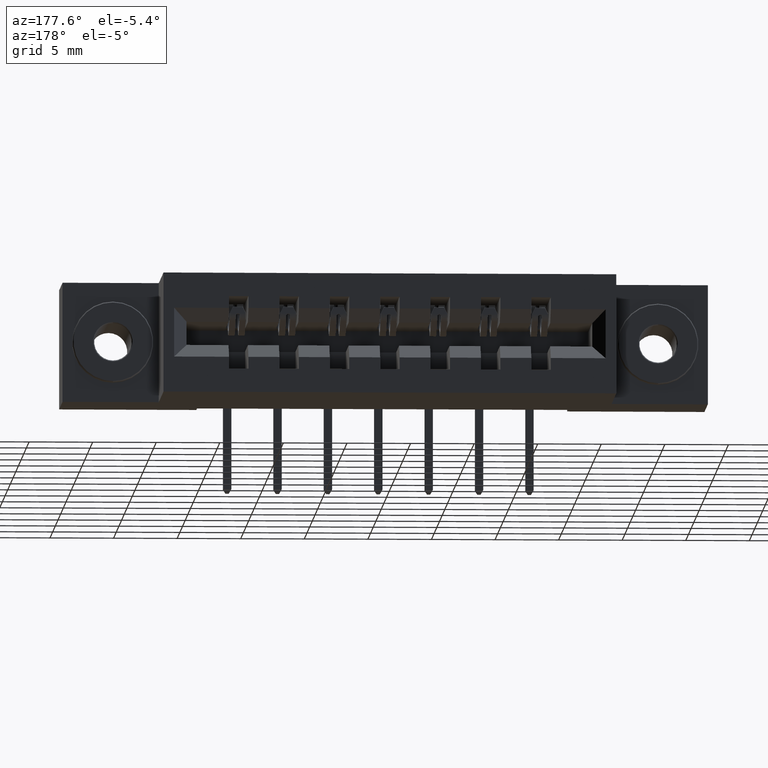
[diagram: clean part render]
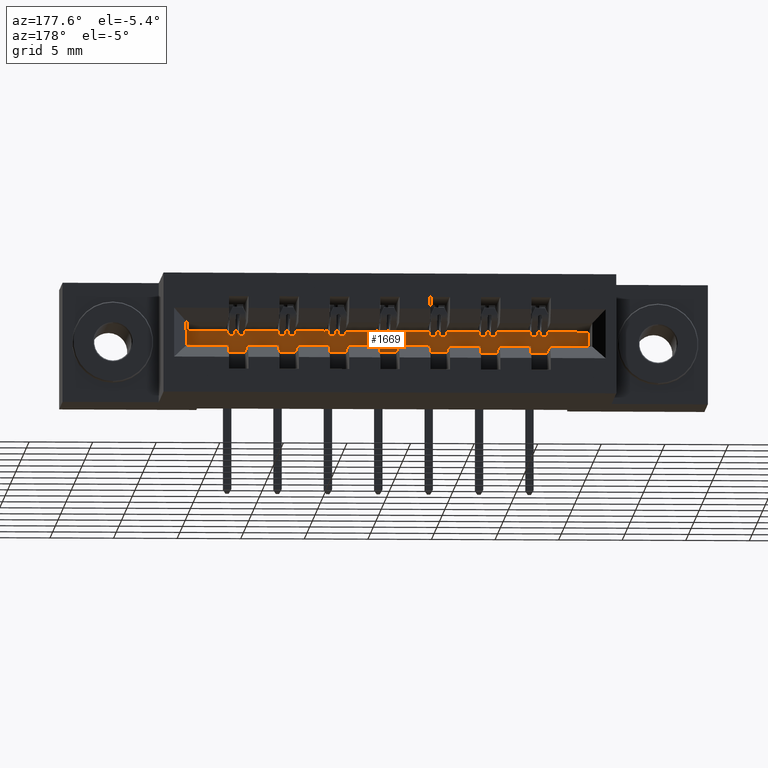
[diagram: same view with one face highlighted and labeled with its STEP entity id]
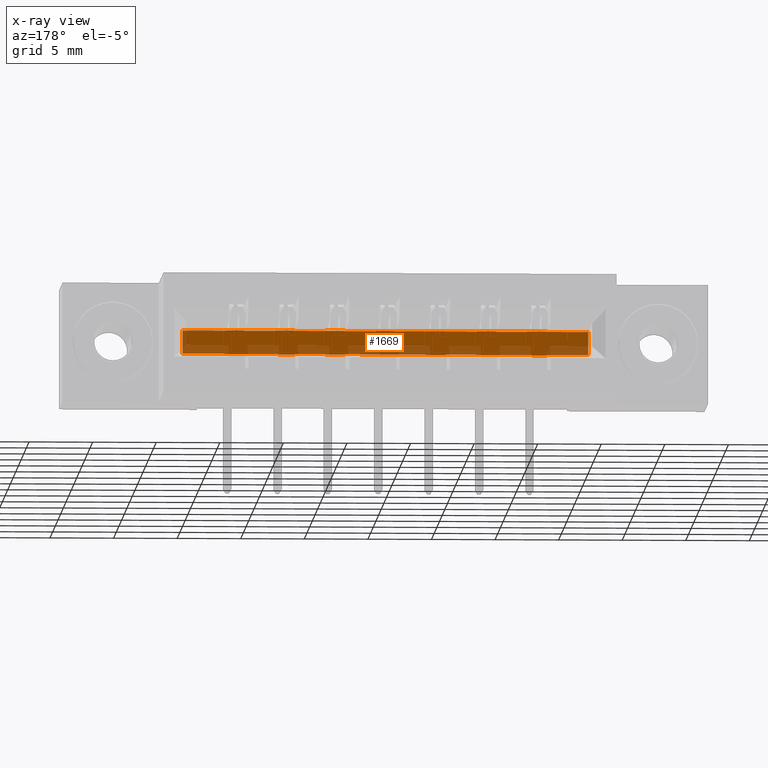
[diagram: x-ray of the same camera — body ghosted, the highlighted face saturated]
A machine part, auxiliary view. The second image highlights one B-rep face of the part: STEP entity #1669.
The next image is the same camera in x-ray: the body ghosted, the highlighted face saturated — about 26% of this face is hidden behind the body in this view.
In plain terms, the highlighted planar face has unit normal (0, 1, 0).
Its self-contained STEP definition (entity closure, byte-faithful):
#30 = ORIENTED_EDGE ( 'NONE', *, *, #7096, .T. ) ;
#111 = VECTOR ( 'NONE', #7673, 39.37007874015748100 ) ;
#119 = VERTEX_POINT ( 'NONE', #2546 ) ;
#121 = EDGE_CURVE ( 'NONE', #5242, #4888, #2994, .T. ) ;
#145 = EDGE_CURVE ( 'NONE', #9084, #989, #472, .T. ) ;
#168 = VECTOR ( 'NONE', #6347, 39.37007874015748100 ) ;
#200 = CARTESIAN_POINT ( 'NONE',  ( 0.3710000000000000000, 0.2699999999999999100, -0.2210000000000000900 ) ) ;
#235 = LINE ( 'NONE', #4000, #4402 ) ;
#307 = DIRECTION ( 'NONE',  ( -1.000000000000000000, -0.0000000000000000000, -0.0000000000000000000 ) ) ;
#381 = DIRECTION ( 'NONE',  ( 1.000000000000000000, -0.0000000000000000000, -0.0000000000000000000 ) ) ;
#382 = CARTESIAN_POINT ( 'NONE',  ( 0.3710000000000000000, 0.2699999999999999100, -0.1490000000000000800 ) ) ;
#392 = CARTESIAN_POINT ( 'NONE',  ( 0.3710000000000000000, 0.2699999999999999100, -0.1490000000000000800 ) ) ;
#406 = CARTESIAN_POINT ( 'NONE',  ( 0.5010000000000001100, 0.2700000000000001800, -0.1480000000000000800 ) ) ;
#421 = LINE ( 'NONE', #1260, #1828 ) ;
#432 = VERTEX_POINT ( 'NONE', #5346 ) ;
#433 = VECTOR ( 'NONE', #5847, 39.37007874015748100 ) ;
#439 = EDGE_CURVE ( 'NONE', #8947, #989, #5281, .T. ) ;
#460 = VERTEX_POINT ( 'NONE', #1191 ) ;
#461 = VECTOR ( 'NONE', #4864, 39.37007874015748100 ) ;
#472 = LINE ( 'NONE', #684, #3866 ) ;
#476 = LINE ( 'NONE', #200, #8978 ) ;
#488 = DIRECTION ( 'NONE',  ( 0.0000000000000000000, -3.691686477924679400E-015, -1.000000000000000000 ) ) ;
#519 = ORIENTED_EDGE ( 'NONE', *, *, #9129, .F. ) ;
#530 = ORIENTED_EDGE ( 'NONE', *, *, #7590, .T. ) ;
#644 = ORIENTED_EDGE ( 'NONE', *, *, #7849, .F. ) ;
#684 = CARTESIAN_POINT ( 'NONE',  ( 0.8730000000000000000, 0.2700000000000001800, -0.1480000000000000500 ) ) ;
#686 = LINE ( 'NONE', #406, #2478 ) ;
#715 = VERTEX_POINT ( 'NONE', #6340 ) ;
#720 = CARTESIAN_POINT ( 'NONE',  ( 1.340999999999999700, 0.2699999999999999100, -0.2220000000000000000 ) ) ;
#755 = EDGE_CURVE ( 'NONE', #9290, #8055, #3622, .T. ) ;
#792 = EDGE_CURVE ( 'NONE', #1795, #715, #7303, .T. ) ;
#811 = EDGE_CURVE ( 'NONE', #2410, #4888, #6156, .T. ) ;
#841 = ORIENTED_EDGE ( 'NONE', *, *, #8873, .T. ) ;
#861 = VECTOR ( 'NONE', #6283, 39.37007874015748100 ) ;
#874 = VECTOR ( 'NONE', #1835, 39.37007874015748100 ) ;
#912 = VERTEX_POINT ( 'NONE', #5812 ) ;
#927 = ORIENTED_EDGE ( 'NONE', *, *, #1927, .F. ) ;
#938 = VERTEX_POINT ( 'NONE', #6897 ) ;
#956 = VERTEX_POINT ( 'NONE', #6041 ) ;
#958 = LINE ( 'NONE', #5468, #9312 ) ;
#968 = VECTOR ( 'NONE', #7392, 39.37007874015748100 ) ;
#989 = VERTEX_POINT ( 'NONE', #1937 ) ;
#1027 = ORIENTED_EDGE ( 'NONE', *, *, #5663, .T. ) ;
#1040 = CARTESIAN_POINT ( 'NONE',  ( 0.7170000000000000800, 0.2700000000000001800, -0.1490000000000000800 ) ) ;
#1048 = CARTESIAN_POINT ( 'NONE',  ( 0.3710000000000000000, 0.2699999999999999100, -0.1490000000000000800 ) ) ;
#1073 = DIRECTION ( 'NONE',  ( 1.000000000000000000, -0.0000000000000000000, -0.0000000000000000000 ) ) ;
#1083 = CARTESIAN_POINT ( 'NONE',  ( 1.124999999999999800, 0.2699999999999999100, -0.2220000000000000600 ) ) ;
#1124 = VECTOR ( 'NONE', #7715, 39.37007874015748100 ) ;
#1131 = CARTESIAN_POINT ( 'NONE',  ( 0.6570000000000000300, 0.2700000000000001800, -0.1480000000000000500 ) ) ;
#1175 = DIRECTION ( 'NONE',  ( 0.0000000000000000000, -3.691686477924679400E-015, -1.000000000000000000 ) ) ;
#1191 = CARTESIAN_POINT ( 'NONE',  ( 0.5010000000000001100, 0.2699999999999999100, -0.2210000000000000900 ) ) ;
#1193 = CARTESIAN_POINT ( 'NONE',  ( 0.3710000000000000000, 0.2699999999999999100, -0.1490000000000000800 ) ) ;
#1212 = CARTESIAN_POINT ( 'NONE',  ( 0.5610000000000000500, 0.2700000000000001800, -0.1490000000000000800 ) ) ;
#1247 = ORIENTED_EDGE ( 'NONE', *, *, #439, .F. ) ;
#1260 = CARTESIAN_POINT ( 'NONE',  ( 0.9689999999999998600, 0.2700000000000001800, -0.1480000000000000200 ) ) ;
#1266 = LINE ( 'NONE', #6086, #6835 ) ;
#1284 = VERTEX_POINT ( 'NONE', #9031 ) ;
#1300 = VERTEX_POINT ( 'NONE', #6467 ) ;
#1345 = EDGE_CURVE ( 'NONE', #1300, #10348, #4882, .T. ) ;
#1394 = ORIENTED_EDGE ( 'NONE', *, *, #792, .T. ) ;
#1421 = CARTESIAN_POINT ( 'NONE',  ( 1.124999999999999800, 0.2700000000000001800, -0.1480000000000000200 ) ) ;
#1434 = ORIENTED_EDGE ( 'NONE', *, *, #1692, .T. ) ;
#1435 = CARTESIAN_POINT ( 'NONE',  ( 0.9689999999999998600, 0.2699999999999999100, -0.2210000000000000900 ) ) ;
#1474 = LINE ( 'NONE', #2894, #8825 ) ;
#1491 = LINE ( 'NONE', #6565, #1884 ) ;
#1494 = LINE ( 'NONE', #2049, #8338 ) ;
#1567 = VERTEX_POINT ( 'NONE', #5796 ) ;
#1584 = LINE ( 'NONE', #4093, #8543 ) ;
#1592 = CARTESIAN_POINT ( 'NONE',  ( 1.124999999999999800, 0.2700000000000001800, -0.1480000000000000200 ) ) ;
#1603 = ORIENTED_EDGE ( 'NONE', *, *, #10061, .F. ) ;
#1606 = EDGE_CURVE ( 'NONE', #3092, #8414, #3356, .T. ) ;
#1615 = CARTESIAN_POINT ( 'NONE',  ( 1.184999999999999800, 0.2700000000000001800, -0.1480000000000000200 ) ) ;
#1625 = CARTESIAN_POINT ( 'NONE',  ( 1.340999999999999700, 0.2700000000000001800, -0.1480000000000000200 ) ) ;
#1629 = ORIENTED_EDGE ( 'NONE', *, *, #9625, .T. ) ;
#1644 = LINE ( 'NONE', #5893, #10097 ) ;
#1669 = ADVANCED_FACE ( 'NONE', ( #7422 ), #4412, .T. ) ;
#1691 = CARTESIAN_POINT ( 'NONE',  ( 0.3710000000000000000, 0.2699999999999999100, -0.2210000000000000900 ) ) ;
#1692 = EDGE_CURVE ( 'NONE', #7751, #7327, #2615, .T. ) ;
#1719 = DIRECTION ( 'NONE',  ( 1.000000000000000000, 0.0000000000000000000, 0.0000000000000000000 ) ) ;
#1724 = ORIENTED_EDGE ( 'NONE', *, *, #6887, .F. ) ;
#1735 = CARTESIAN_POINT ( 'NONE',  ( 0.8129999999999999400, 0.2700000000000001800, -0.1480000000000000500 ) ) ;
#1749 = CARTESIAN_POINT ( 'NONE',  ( 1.437000000000000100, 0.2699999999999999100, -0.2220000000000000000 ) ) ;
#1752 = VERTEX_POINT ( 'NONE', #7685 ) ;
#1795 = VERTEX_POINT ( 'NONE', #10331 ) ;
#1797 = DIRECTION ( 'NONE',  ( -1.000000000000000000, -0.0000000000000000000, -0.0000000000000000000 ) ) ;
#1828 = VECTOR ( 'NONE', #5134, 39.37007874015748100 ) ;
#1835 = DIRECTION ( 'NONE',  ( -1.000000000000000000, -0.0000000000000000000, -0.0000000000000000000 ) ) ;
#1839 = VECTOR ( 'NONE', #3303, 39.37007874015748100 ) ;
#1874 = CARTESIAN_POINT ( 'NONE',  ( 1.124999999999999800, 0.2699999999999999100, -0.2210000000000000900 ) ) ;
#1884 = VECTOR ( 'NONE', #5479, 39.37007874015748100 ) ;
#1888 = VERTEX_POINT ( 'NONE', #3789 ) ;
#1900 = ORIENTED_EDGE ( 'NONE', *, *, #5104, .T. ) ;
#1916 = CARTESIAN_POINT ( 'NONE',  ( 0.7170000000000000800, 0.2699999999999999100, -0.2210000000000000900 ) ) ;
#1922 = DIRECTION ( 'NONE',  ( 1.000000000000000000, 0.0000000000000000000, 0.0000000000000000000 ) ) ;
#1927 = EDGE_CURVE ( 'NONE', #8681, #7222, #686, .T. ) ;
#1937 = CARTESIAN_POINT ( 'NONE',  ( 0.8730000000000000000, 0.2699999999999999100, -0.2220000000000000600 ) ) ;
#1938 = ORIENTED_EDGE ( 'NONE', *, *, #5857, .T. ) ;
#1976 = VECTOR ( 'NONE', #8110, 39.37007874015748100 ) ;
#1998 = LINE ( 'NONE', #4285, #4524 ) ;
#2014 = DIRECTION ( 'NONE',  ( -1.000000000000000000, -0.0000000000000000000, -0.0000000000000000000 ) ) ;
#2049 = CARTESIAN_POINT ( 'NONE',  ( 0.7170000000000000800, 0.2700000000000001800, -0.1480000000000000500 ) ) ;
#2087 = CARTESIAN_POINT ( 'NONE',  ( 1.028999999999999900, 0.2700000000000001800, -0.1480000000000000200 ) ) ;
#2116 = VECTOR ( 'NONE', #9808, 39.37007874015748100 ) ;
#2123 = ORIENTED_EDGE ( 'NONE', *, *, #2577, .T. ) ;
#2171 = ORIENTED_EDGE ( 'NONE', *, *, #3667, .T. ) ;
#2188 = VERTEX_POINT ( 'NONE', #4211 ) ;
#2238 = CARTESIAN_POINT ( 'NONE',  ( 0.7170000000000000800, 0.2700000000000001800, -0.1480000000000000500 ) ) ;
#2313 = ORIENTED_EDGE ( 'NONE', *, *, #4011, .T. ) ;
#2334 = LINE ( 'NONE', #3118, #168 ) ;
#2346 = LINE ( 'NONE', #7315, #1839 ) ;
#2366 = LINE ( 'NONE', #9467, #2845 ) ;
#2369 = CARTESIAN_POINT ( 'NONE',  ( 0.5610000000000000500, 0.2699999999999999100, -0.2220000000000000900 ) ) ;
#2373 = CARTESIAN_POINT ( 'NONE',  ( 0.3710000000000000000, 0.2699999999999999100, -0.2210000000000000900 ) ) ;
#2389 = ORIENTED_EDGE ( 'NONE', *, *, #1606, .T. ) ;
#2410 = VERTEX_POINT ( 'NONE', #6355 ) ;
#2478 = VECTOR ( 'NONE', #1175, 39.37007874015748100 ) ;
#2495 = LINE ( 'NONE', #1048, #6537 ) ;
#2546 = CARTESIAN_POINT ( 'NONE',  ( 1.124999999999999800, 0.2700000000000001800, -0.1490000000000000800 ) ) ;
#2577 = EDGE_CURVE ( 'NONE', #938, #9240, #7460, .T. ) ;
#2582 = DIRECTION ( 'NONE',  ( 0.0000000000000000000, -3.691686477924679400E-015, -1.000000000000000000 ) ) ;
#2607 = DIRECTION ( 'NONE',  ( 0.0000000000000000000, -3.691686477924679400E-015, -1.000000000000000000 ) ) ;
#2615 = LINE ( 'NONE', #1193, #10437 ) ;
#2617 = CARTESIAN_POINT ( 'NONE',  ( 0.3710000000000000000, 0.2699999999999999100, -0.1490000000000000800 ) ) ;
#2622 = EDGE_CURVE ( 'NONE', #8078, #1567, #8670, .T. ) ;
#2670 = VERTEX_POINT ( 'NONE', #10247 ) ;
#2679 = CARTESIAN_POINT ( 'NONE',  ( 0.9689999999999998600, 0.2700000000000001800, -0.1480000000000000200 ) ) ;
#2680 = ORIENTED_EDGE ( 'NONE', *, *, #9278, .T. ) ;
#2683 = CARTESIAN_POINT ( 'NONE',  ( 0.5610000000000000500, 0.2700000000000001800, -0.1480000000000000800 ) ) ;
#2706 = DIRECTION ( 'NONE',  ( 0.0000000000000000000, 1.000000000000000000, 0.0000000000000000000 ) ) ;
#2727 = LINE ( 'NONE', #2679, #3969 ) ;
#2746 = CARTESIAN_POINT ( 'NONE',  ( 0.3710000000000000000, 0.2699999999999999100, -0.2210000000000000900 ) ) ;
#2748 = VECTOR ( 'NONE', #9930, 39.37007874015748100 ) ;
#2798 = EDGE_CURVE ( 'NONE', #432, #956, #1266, .T. ) ;
#2817 = CARTESIAN_POINT ( 'NONE',  ( 1.626999999999999800, 0.2699999999999999100, -0.2210000000000000900 ) ) ;
#2845 = VECTOR ( 'NONE', #8731, 39.37007874015748100 ) ;
#2854 = VECTOR ( 'NONE', #5194, 39.37007874015748100 ) ;
#2894 = CARTESIAN_POINT ( 'NONE',  ( 0.5610000000000000500, 0.2700000000000001800, -0.1480000000000000800 ) ) ;
#2946 = DIRECTION ( 'NONE',  ( 0.0000000000000000000, -3.691686477924679400E-015, -1.000000000000000000 ) ) ;
#2949 = LINE ( 'NONE', #4557, #3707 ) ;
#2981 = ORIENTED_EDGE ( 'NONE', *, *, #4365, .F. ) ;
#2992 = EDGE_CURVE ( 'NONE', #2188, #7222, #7339, .T. ) ;
#2994 = LINE ( 'NONE', #1625, #861 ) ;
#3027 = DIRECTION ( 'NONE',  ( 0.0000000000000000000, -3.691686477924679400E-015, -1.000000000000000000 ) ) ;
#3074 = VECTOR ( 'NONE', #9168, 39.37007874015748100 ) ;
#3081 = ORIENTED_EDGE ( 'NONE', *, *, #2798, .F. ) ;
#3092 = VERTEX_POINT ( 'NONE', #1874 ) ;
#3118 = CARTESIAN_POINT ( 'NONE',  ( 1.280999999999999700, 0.2700000000000001800, -0.1480000000000000200 ) ) ;
#3121 = EDGE_CURVE ( 'NONE', #4153, #7310, #1998, .T. ) ;
#3140 = VERTEX_POINT ( 'NONE', #8492 ) ;
#3200 = DIRECTION ( 'NONE',  ( 1.000000000000000000, -0.0000000000000000000, -0.0000000000000000000 ) ) ;
#3247 = VECTOR ( 'NONE', #6727, 39.37007874015748100 ) ;
#3262 = EDGE_CURVE ( 'NONE', #9663, #1752, #1491, .T. ) ;
#3303 = DIRECTION ( 'NONE',  ( 0.0000000000000000000, -3.691686477924679400E-015, -1.000000000000000000 ) ) ;
#3320 = VERTEX_POINT ( 'NONE', #4623 ) ;
#3356 = LINE ( 'NONE', #6822, #4221 ) ;
#3368 = CARTESIAN_POINT ( 'NONE',  ( 1.340999999999999700, 0.2699999999999999100, -0.2210000000000000900 ) ) ;
#3373 = DIRECTION ( 'NONE',  ( 0.0000000000000000000, -3.691686477924679400E-015, -1.000000000000000000 ) ) ;
#3413 = CARTESIAN_POINT ( 'NONE',  ( 1.184999999999999800, 0.2699999999999999100, -0.2210000000000000900 ) ) ;
#3431 = CARTESIAN_POINT ( 'NONE',  ( 1.280999999999999700, 0.2700000000000001800, -0.1480000000000000200 ) ) ;
#3453 = DIRECTION ( 'NONE',  ( 0.0000000000000000000, -3.691686477924679400E-015, -1.000000000000000000 ) ) ;
#3518 = VERTEX_POINT ( 'NONE', #10465 ) ;
#3568 = DIRECTION ( 'NONE',  ( 1.000000000000000000, 0.0000000000000000000, 0.0000000000000000000 ) ) ;
#3598 = LINE ( 'NONE', #3431, #433 ) ;
#3599 = VECTOR ( 'NONE', #8398, 39.37007874015748100 ) ;
#3622 = LINE ( 'NONE', #8779, #7184 ) ;
#3623 = VERTEX_POINT ( 'NONE', #8032 ) ;
#3625 = VECTOR ( 'NONE', #6781, 39.37007874015748100 ) ;
#3626 = DIRECTION ( 'NONE',  ( 1.000000000000000000, 0.0000000000000000000, 0.0000000000000000000 ) ) ;
#3632 = DIRECTION ( 'NONE',  ( 0.0000000000000000000, -3.691686477924679400E-015, -1.000000000000000000 ) ) ;
#3663 = ORIENTED_EDGE ( 'NONE', *, *, #6122, .T. ) ;
#3667 = EDGE_CURVE ( 'NONE', #10348, #1567, #4787, .T. ) ;
#3696 = VERTEX_POINT ( 'NONE', #7346 ) ;
#3707 = VECTOR ( 'NONE', #6558, 39.37007874015748100 ) ;
#3789 = CARTESIAN_POINT ( 'NONE',  ( 0.5610000000000000500, 0.2699999999999999100, -0.2210000000000000900 ) ) ;
#3795 = ORIENTED_EDGE ( 'NONE', *, *, #5981, .F. ) ;
#3808 = LINE ( 'NONE', #6848, #3940 ) ;
#3811 = CARTESIAN_POINT ( 'NONE',  ( 1.496999999999999900, 0.2700000000000001800, -0.1479999999999999900 ) ) ;
#3866 = VECTOR ( 'NONE', #3373, 39.37007874015748100 ) ;
#3910 = ORIENTED_EDGE ( 'NONE', *, *, #10361, .T. ) ;
#3940 = VECTOR ( 'NONE', #3632, 39.37007874015748100 ) ;
#3957 = VERTEX_POINT ( 'NONE', #7156 ) ;
#3968 = EDGE_CURVE ( 'NONE', #3140, #1888, #6172, .T. ) ;
#3969 = VECTOR ( 'NONE', #2607, 39.37007874015748100 ) ;
#4000 = CARTESIAN_POINT ( 'NONE',  ( 0.9689999999999998600, 0.2699999999999999100, -0.2220000000000000600 ) ) ;
#4009 = VECTOR ( 'NONE', #7135, 39.37007874015748100 ) ;
#4011 = EDGE_CURVE ( 'NONE', #7988, #5780, #1494, .T. ) ;
#4027 = CARTESIAN_POINT ( 'NONE',  ( 0.8730000000000000000, 0.2699999999999999100, -0.2210000000000000900 ) ) ;
#4040 = ORIENTED_EDGE ( 'NONE', *, *, #3968, .T. ) ;
#4073 = EDGE_CURVE ( 'NONE', #8882, #1752, #10218, .T. ) ;
#4093 = CARTESIAN_POINT ( 'NONE',  ( 1.437000000000000100, 0.2700000000000001800, -0.1479999999999999900 ) ) ;
#4104 = CARTESIAN_POINT ( 'NONE',  ( 1.496999999999999900, 0.2700000000000001800, -0.1479999999999999900 ) ) ;
#4112 = LINE ( 'NONE', #4218, #7921 ) ;
#4153 = VERTEX_POINT ( 'NONE', #2683 ) ;
#4184 = ORIENTED_EDGE ( 'NONE', *, *, #9266, .T. ) ;
#4196 = EDGE_CURVE ( 'NONE', #460, #6081, #8580, .T. ) ;
#4211 = CARTESIAN_POINT ( 'NONE',  ( 0.3710000000000000000, 0.2699999999999999100, -0.1490000000000000800 ) ) ;
#4218 = CARTESIAN_POINT ( 'NONE',  ( 0.3710000000000000000, 0.2699999999999999100, -0.1490000000000000800 ) ) ;
#4221 = VECTOR ( 'NONE', #8443, 39.37007874015748100 ) ;
#4285 = CARTESIAN_POINT ( 'NONE',  ( 0.5610000000000000500, 0.2700000000000001800, -0.1480000000000000800 ) ) ;
#4334 = CARTESIAN_POINT ( 'NONE',  ( 0.3710000000000000000, 0.2699999999999999100, -0.2210000000000000900 ) ) ;
#4347 = CARTESIAN_POINT ( 'NONE',  ( 1.124999999999999800, 0.2699999999999999100, -0.2220000000000000600 ) ) ;
#4361 = ORIENTED_EDGE ( 'NONE', *, *, #4825, .T. ) ;
#4365 = EDGE_CURVE ( 'NONE', #4556, #5728, #7053, .T. ) ;
#4371 = CARTESIAN_POINT ( 'NONE',  ( 0.8730000000000000000, 0.2700000000000001800, -0.1480000000000000500 ) ) ;
#4381 = LINE ( 'NONE', #5955, #3625 ) ;
#4402 = VECTOR ( 'NONE', #3200, 39.37007874015748100 ) ;
#4412 = PLANE ( 'NONE',  #9708 ) ;
#4422 = CARTESIAN_POINT ( 'NONE',  ( 0.8129999999999999400, 0.2699999999999999100, -0.2220000000000000600 ) ) ;
#4439 = CARTESIAN_POINT ( 'NONE',  ( 1.437000000000000100, 0.2699999999999999100, -0.2210000000000000900 ) ) ;
#4492 = LINE ( 'NONE', #3811, #6916 ) ;
#4524 = VECTOR ( 'NONE', #2582, 39.37007874015748100 ) ;
#4556 = VERTEX_POINT ( 'NONE', #8620 ) ;
#4557 = CARTESIAN_POINT ( 'NONE',  ( 0.8129999999999999400, 0.2700000000000001800, -0.1480000000000000500 ) ) ;
#4607 = CARTESIAN_POINT ( 'NONE',  ( 0.3710000000000000000, 0.2699999999999999100, -0.1490000000000000800 ) ) ;
#4613 = CARTESIAN_POINT ( 'NONE',  ( 0.5010000000000001100, 0.2700000000000001800, -0.1480000000000000800 ) ) ;
#4623 = CARTESIAN_POINT ( 'NONE',  ( 1.437000000000000100, 0.2700000000000001800, -0.1479999999999999900 ) ) ;
#4632 = LINE ( 'NONE', #7112, #8320 ) ;
#4645 = EDGE_CURVE ( 'NONE', #9215, #9663, #10191, .T. ) ;
#4661 = ORIENTED_EDGE ( 'NONE', *, *, #8557, .F. ) ;
#4668 = DIRECTION ( 'NONE',  ( 0.0000000000000000000, -3.691686477924679400E-015, -1.000000000000000000 ) ) ;
#4682 = EDGE_CURVE ( 'NONE', #1284, #6315, #4112, .T. ) ;
#4720 = ORIENTED_EDGE ( 'NONE', *, *, #9513, .T. ) ;
#4728 = CARTESIAN_POINT ( 'NONE',  ( 0.8730000000000000000, 0.2700000000000001800, -0.1480000000000000500 ) ) ;
#4753 = LINE ( 'NONE', #6420, #1976 ) ;
#4757 = ORIENTED_EDGE ( 'NONE', *, *, #7107, .F. ) ;
#4787 = LINE ( 'NONE', #1615, #2116 ) ;
#4802 = VECTOR ( 'NONE', #381, 39.37007874015748100 ) ;
#4825 = EDGE_CURVE ( 'NONE', #1888, #9036, #1474, .T. ) ;
#4838 = EDGE_CURVE ( 'NONE', #7956, #3696, #2366, .T. ) ;
#4864 = DIRECTION ( 'NONE',  ( 1.000000000000000000, 0.0000000000000000000, 0.0000000000000000000 ) ) ;
#4865 = DIRECTION ( 'NONE',  ( -1.000000000000000000, -0.0000000000000000000, -0.0000000000000000000 ) ) ;
#4882 = LINE ( 'NONE', #1691, #9327 ) ;
#4888 = VERTEX_POINT ( 'NONE', #720 ) ;
#4944 = DIRECTION ( 'NONE',  ( 1.000000000000000000, -0.0000000000000000000, -0.0000000000000000000 ) ) ;
#4950 = DIRECTION ( 'NONE',  ( 0.0000000000000000000, -3.691686477924679400E-015, -1.000000000000000000 ) ) ;
#4971 = ORIENTED_EDGE ( 'NONE', *, *, #145, .T. ) ;
#4973 = ORIENTED_EDGE ( 'NONE', *, *, #9321, .T. ) ;
#4985 = CARTESIAN_POINT ( 'NONE',  ( 0.5010000000000001100, 0.2699999999999999100, -0.2220000000000000900 ) ) ;
#5028 = CARTESIAN_POINT ( 'NONE',  ( 1.437000000000000100, 0.2700000000000001800, -0.1479999999999999900 ) ) ;
#5104 = EDGE_CURVE ( 'NONE', #3623, #6405, #4753, .T. ) ;
#5115 = EDGE_CURVE ( 'NONE', #3957, #119, #2495, .T. ) ;
#5132 = EDGE_CURVE ( 'NONE', #8375, #9240, #2727, .T. ) ;
#5134 = DIRECTION ( 'NONE',  ( 1.000000000000000000, -0.0000000000000000000, -0.0000000000000000000 ) ) ;
#5180 = DIRECTION ( 'NONE',  ( 0.0000000000000000000, -3.691686477924679400E-015, -1.000000000000000000 ) ) ;
#5191 = CARTESIAN_POINT ( 'NONE',  ( 0.5010000000000001100, 0.2700000000000001800, -0.1480000000000000800 ) ) ;
#5194 = DIRECTION ( 'NONE',  ( 0.0000000000000000000, -3.691686477924679400E-015, -1.000000000000000000 ) ) ;
#5242 = VERTEX_POINT ( 'NONE', #3368 ) ;
#5281 = LINE ( 'NONE', #4422, #6036 ) ;
#5315 = ORIENTED_EDGE ( 'NONE', *, *, #2992, .T. ) ;
#5346 = CARTESIAN_POINT ( 'NONE',  ( 0.6570000000000000300, 0.2700000000000001800, -0.1480000000000000500 ) ) ;
#5383 = CARTESIAN_POINT ( 'NONE',  ( 0.6570000000000000300, 0.2699999999999999100, -0.2220000000000000900 ) ) ;
#5389 = EDGE_CURVE ( 'NONE', #3140, #7236, #5760, .T. ) ;
#5417 = DIRECTION ( 'NONE',  ( 1.000000000000000000, -0.0000000000000000000, -0.0000000000000000000 ) ) ;
#5425 = DIRECTION ( 'NONE',  ( 1.000000000000000000, -0.0000000000000000000, -0.0000000000000000000 ) ) ;
#5468 = CARTESIAN_POINT ( 'NONE',  ( 0.3710000000000000000, 0.2699999999999999100, -0.1490000000000000800 ) ) ;
#5479 = DIRECTION ( 'NONE',  ( 1.000000000000000000, -0.0000000000000000000, -0.0000000000000000000 ) ) ;
#5484 = VECTOR ( 'NONE', #2946, 39.37007874015748100 ) ;
#5504 = CARTESIAN_POINT ( 'NONE',  ( 1.028999999999999900, 0.2699999999999999100, -0.2210000000000000900 ) ) ;
#5527 = EDGE_CURVE ( 'NONE', #4556, #8497, #2949, .T. ) ;
#5551 = ORIENTED_EDGE ( 'NONE', *, *, #2622, .F. ) ;
#5605 = CARTESIAN_POINT ( 'NONE',  ( 0.3710000000000000000, 0.2699999999999999100, -0.2210000000000000900 ) ) ;
#5661 = VECTOR ( 'NONE', #9791, 39.37007874015748100 ) ;
#5663 = EDGE_CURVE ( 'NONE', #5780, #5728, #958, .T. ) ;
#5714 = ORIENTED_EDGE ( 'NONE', *, *, #5115, .T. ) ;
#5718 = ORIENTED_EDGE ( 'NONE', *, *, #5842, .T. ) ;
#5725 = CARTESIAN_POINT ( 'NONE',  ( 0.3710000000000000000, 0.2699999999999999100, -0.2210000000000000900 ) ) ;
#5728 = VERTEX_POINT ( 'NONE', #5844 ) ;
#5730 = LINE ( 'NONE', #2373, #8649 ) ;
#5760 = LINE ( 'NONE', #1131, #3599 ) ;
#5780 = VERTEX_POINT ( 'NONE', #1040 ) ;
#5796 = CARTESIAN_POINT ( 'NONE',  ( 1.184999999999999800, 0.2699999999999999100, -0.2220000000000000600 ) ) ;
#5812 = CARTESIAN_POINT ( 'NONE',  ( 1.028999999999999900, 0.2699999999999999100, -0.2220000000000000600 ) ) ;
#5815 = EDGE_CURVE ( 'NONE', #8414, #912, #3808, .T. ) ;
#5842 = EDGE_CURVE ( 'NONE', #6315, #9756, #7403, .T. ) ;
#5844 = CARTESIAN_POINT ( 'NONE',  ( 0.8129999999999999400, 0.2700000000000001800, -0.1490000000000000800 ) ) ;
#5846 = CARTESIAN_POINT ( 'NONE',  ( 0.7170000000000000800, 0.2699999999999999100, -0.2220000000000000900 ) ) ;
#5847 = DIRECTION ( 'NONE',  ( 1.000000000000000000, -0.0000000000000000000, -0.0000000000000000000 ) ) ;
#5851 = ORIENTED_EDGE ( 'NONE', *, *, #9615, .F. ) ;
#5857 = EDGE_CURVE ( 'NONE', #8375, #7729, #421, .T. ) ;
#5893 = CARTESIAN_POINT ( 'NONE',  ( 1.280999999999999700, 0.2700000000000001800, -0.1480000000000000200 ) ) ;
#5932 = LINE ( 'NONE', #7616, #6273 ) ;
#5955 = CARTESIAN_POINT ( 'NONE',  ( 0.3710000000000000000, 0.2699999999999999100, -0.2210000000000000900 ) ) ;
#5981 = EDGE_CURVE ( 'NONE', #460, #8163, #7880, .T. ) ;
#5990 = EDGE_CURVE ( 'NONE', #7729, #3957, #10047, .T. ) ;
#6028 = ORIENTED_EDGE ( 'NONE', *, *, #755, .T. ) ;
#6036 = VECTOR ( 'NONE', #5425, 39.37007874015748100 ) ;
#6041 = CARTESIAN_POINT ( 'NONE',  ( 0.6570000000000000300, 0.2700000000000001800, -0.1490000000000000800 ) ) ;
#6081 = VERTEX_POINT ( 'NONE', #5605 ) ;
#6086 = CARTESIAN_POINT ( 'NONE',  ( 0.6570000000000000300, 0.2700000000000001800, -0.1480000000000000500 ) ) ;
#6122 = EDGE_CURVE ( 'NONE', #715, #7751, #6842, .T. ) ;
#6156 = LINE ( 'NONE', #7444, #6546 ) ;
#6172 = LINE ( 'NONE', #5725, #10344 ) ;
#6197 = LINE ( 'NONE', #5191, #4802 ) ;
#6202 = ORIENTED_EDGE ( 'NONE', *, *, #5132, .F. ) ;
#6207 = CARTESIAN_POINT ( 'NONE',  ( 0.8129999999999999400, 0.2699999999999999100, -0.2210000000000000900 ) ) ;
#6273 = VECTOR ( 'NONE', #3568, 39.37007874015748100 ) ;
#6283 = DIRECTION ( 'NONE',  ( 0.0000000000000000000, -3.691686477924679400E-015, -1.000000000000000000 ) ) ;
#6287 = LINE ( 'NONE', #4371, #2854 ) ;
#6315 = VERTEX_POINT ( 'NONE', #7477 ) ;
#6340 = CARTESIAN_POINT ( 'NONE',  ( 1.184999999999999800, 0.2700000000000001800, -0.1480000000000000200 ) ) ;
#6347 = DIRECTION ( 'NONE',  ( 0.0000000000000000000, -3.691686477924679400E-015, -1.000000000000000000 ) ) ;
#6355 = CARTESIAN_POINT ( 'NONE',  ( 1.280999999999999700, 0.2699999999999999100, -0.2220000000000000000 ) ) ;
#6405 = VERTEX_POINT ( 'NONE', #8491 ) ;
#6420 = CARTESIAN_POINT ( 'NONE',  ( 1.340999999999999700, 0.2700000000000001800, -0.1480000000000000200 ) ) ;
#6444 = CARTESIAN_POINT ( 'NONE',  ( 1.280999999999999700, 0.2700000000000001800, -0.1490000000000000800 ) ) ;
#6467 = CARTESIAN_POINT ( 'NONE',  ( 1.280999999999999700, 0.2699999999999999100, -0.2210000000000000900 ) ) ;
#6520 = EDGE_CURVE ( 'NONE', #8681, #4153, #6197, .T. ) ;
#6537 = VECTOR ( 'NONE', #1719, 39.37007874015748100 ) ;
#6546 = VECTOR ( 'NONE', #1073, 39.37007874015748100 ) ;
#6558 = DIRECTION ( 'NONE',  ( 1.000000000000000000, -0.0000000000000000000, -0.0000000000000000000 ) ) ;
#6565 = CARTESIAN_POINT ( 'NONE',  ( 1.437000000000000100, 0.2699999999999999100, -0.2220000000000000000 ) ) ;
#6634 = EDGE_CURVE ( 'NONE', #1795, #119, #9486, .T. ) ;
#6676 = VECTOR ( 'NONE', #3453, 39.37007874015748100 ) ;
#6688 = ORIENTED_EDGE ( 'NONE', *, *, #4073, .T. ) ;
#6727 = DIRECTION ( 'NONE',  ( 1.000000000000000000, -0.0000000000000000000, -0.0000000000000000000 ) ) ;
#6781 = DIRECTION ( 'NONE',  ( -1.000000000000000000, -0.0000000000000000000, -0.0000000000000000000 ) ) ;
#6787 = VECTOR ( 'NONE', #7515, 39.37007874015748100 ) ;
#6822 = CARTESIAN_POINT ( 'NONE',  ( 0.3710000000000000000, 0.2699999999999999100, -0.2210000000000000900 ) ) ;
#6835 = VECTOR ( 'NONE', #8722, 39.37007874015748100 ) ;
#6842 = LINE ( 'NONE', #10419, #4009 ) ;
#6848 = CARTESIAN_POINT ( 'NONE',  ( 1.028999999999999900, 0.2700000000000001800, -0.1480000000000000200 ) ) ;
#6857 = CARTESIAN_POINT ( 'NONE',  ( 1.184999999999999800, 0.2700000000000001800, -0.1490000000000000800 ) ) ;
#6858 = ORIENTED_EDGE ( 'NONE', *, *, #5389, .F. ) ;
#6864 = EDGE_CURVE ( 'NONE', #3696, #912, #235, .T. ) ;
#6887 = EDGE_CURVE ( 'NONE', #3092, #8078, #7476, .T. ) ;
#6897 = CARTESIAN_POINT ( 'NONE',  ( 0.8730000000000000000, 0.2700000000000001800, -0.1490000000000000800 ) ) ;
#6916 = VECTOR ( 'NONE', #7800, 39.37007874015748100 ) ;
#6944 = EDGE_LOOP ( 'NONE', ( #30, #6688, #8628, #9561, #3910, #7237, #9709, #1603, #8539, #2171, #5551, #1724, #2389, #9463, #9022, #8277, #7085, #4971, #1247, #519, #530, #6028, #644, #6858, #4040, #4361, #4661, #3795, #7626, #4184, #5315, #927, #9232, #9669, #2680, #3081, #4720, #2313, #1027, #2981, #7572, #8145, #2123, #6202, #1938, #6991, #5714, #7582, #1394, #3663, #1434, #4757, #1629, #1900, #841, #5851, #8284, #4973, #9344, #5718 ) ) ;
#6991 = ORIENTED_EDGE ( 'NONE', *, *, #5990, .T. ) ;
#7029 = DIRECTION ( 'NONE',  ( 1.000000000000000000, 0.0000000000000000000, 0.0000000000000000000 ) ) ;
#7053 = LINE ( 'NONE', #1735, #2748 ) ;
#7085 = ORIENTED_EDGE ( 'NONE', *, *, #7666, .T. ) ;
#7096 = EDGE_CURVE ( 'NONE', #9756, #8882, #7461, .T. ) ;
#7107 = EDGE_CURVE ( 'NONE', #8998, #7327, #1644, .T. ) ;
#7112 = CARTESIAN_POINT ( 'NONE',  ( 0.6570000000000000300, 0.2699999999999999100, -0.2220000000000000900 ) ) ;
#7135 = DIRECTION ( 'NONE',  ( 0.0000000000000000000, -3.691686477924679400E-015, -1.000000000000000000 ) ) ;
#7156 = CARTESIAN_POINT ( 'NONE',  ( 1.028999999999999900, 0.2700000000000001800, -0.1490000000000000800 ) ) ;
#7184 = VECTOR ( 'NONE', #4668, 39.37007874015748100 ) ;
#7222 = VERTEX_POINT ( 'NONE', #9428 ) ;
#7236 = VERTEX_POINT ( 'NONE', #5383 ) ;
#7237 = ORIENTED_EDGE ( 'NONE', *, *, #121, .T. ) ;
#7243 = VERTEX_POINT ( 'NONE', #6207 ) ;
#7285 = LINE ( 'NONE', #4607, #8171 ) ;
#7303 = LINE ( 'NONE', #9083, #3247 ) ;
#7310 = VERTEX_POINT ( 'NONE', #1212 ) ;
#7315 = CARTESIAN_POINT ( 'NONE',  ( 0.8129999999999999400, 0.2700000000000001800, -0.1480000000000000500 ) ) ;
#7327 = VERTEX_POINT ( 'NONE', #6444 ) ;
#7339 = LINE ( 'NONE', #382, #111 ) ;
#7344 = VECTOR ( 'NONE', #3027, 39.37007874015748100 ) ;
#7346 = CARTESIAN_POINT ( 'NONE',  ( 0.9689999999999998600, 0.2699999999999999100, -0.2220000000000000600 ) ) ;
#7392 = DIRECTION ( 'NONE',  ( 1.000000000000000000, -0.0000000000000000000, -0.0000000000000000000 ) ) ;
#7403 = LINE ( 'NONE', #2817, #8281 ) ;
#7422 = FACE_OUTER_BOUND ( 'NONE', #6944, .T. ) ;
#7444 = CARTESIAN_POINT ( 'NONE',  ( 1.280999999999999700, 0.2699999999999999100, -0.2220000000000000000 ) ) ;
#7452 = DIRECTION ( 'NONE',  ( 0.0000000000000000000, -3.691686477924679400E-015, -1.000000000000000000 ) ) ;
#7460 = LINE ( 'NONE', #2617, #461 ) ;
#7461 = LINE ( 'NONE', #2746, #874 ) ;
#7476 = LINE ( 'NONE', #1592, #9361 ) ;
#7477 = CARTESIAN_POINT ( 'NONE',  ( 1.626999999999999800, 0.2699999999999999100, -0.1490000000000000800 ) ) ;
#7515 = DIRECTION ( 'NONE',  ( 1.000000000000000000, -0.0000000000000000000, -0.0000000000000000000 ) ) ;
#7572 = ORIENTED_EDGE ( 'NONE', *, *, #5527, .T. ) ;
#7582 = ORIENTED_EDGE ( 'NONE', *, *, #6634, .F. ) ;
#7590 = EDGE_CURVE ( 'NONE', #7243, #9290, #476, .T. ) ;
#7616 = CARTESIAN_POINT ( 'NONE',  ( 0.3710000000000000000, 0.2699999999999999100, -0.1490000000000000800 ) ) ;
#7626 = ORIENTED_EDGE ( 'NONE', *, *, #4196, .T. ) ;
#7666 = EDGE_CURVE ( 'NONE', #7956, #9084, #4381, .T. ) ;
#7673 = DIRECTION ( 'NONE',  ( 1.000000000000000000, 0.0000000000000000000, 0.0000000000000000000 ) ) ;
#7685 = CARTESIAN_POINT ( 'NONE',  ( 1.496999999999999900, 0.2699999999999999100, -0.2220000000000000000 ) ) ;
#7710 = CARTESIAN_POINT ( 'NONE',  ( 0.5010000000000001100, 0.2699999999999999100, -0.2220000000000000900 ) ) ;
#7715 = DIRECTION ( 'NONE',  ( -1.000000000000000000, -0.0000000000000000000, -0.0000000000000000000 ) ) ;
#7729 = VERTEX_POINT ( 'NONE', #8445 ) ;
#7751 = VERTEX_POINT ( 'NONE', #6857 ) ;
#7773 = LINE ( 'NONE', #9704, #6787 ) ;
#7800 = DIRECTION ( 'NONE',  ( 0.0000000000000000000, -3.691686477924679400E-015, -1.000000000000000000 ) ) ;
#7849 = EDGE_CURVE ( 'NONE', #7236, #8055, #4632, .T. ) ;
#7880 = LINE ( 'NONE', #4613, #9802 ) ;
#7921 = VECTOR ( 'NONE', #3626, 39.37007874015748100 ) ;
#7956 = VERTEX_POINT ( 'NONE', #1435 ) ;
#7988 = VERTEX_POINT ( 'NONE', #2238 ) ;
#8005 = CARTESIAN_POINT ( 'NONE',  ( 1.280999999999999700, 0.2700000000000001800, -0.1480000000000000200 ) ) ;
#8025 = VECTOR ( 'NONE', #7452, 39.37007874015748100 ) ;
#8032 = CARTESIAN_POINT ( 'NONE',  ( 1.340999999999999700, 0.2700000000000001800, -0.1480000000000000200 ) ) ;
#8055 = VERTEX_POINT ( 'NONE', #5846 ) ;
#8078 = VERTEX_POINT ( 'NONE', #1083 ) ;
#8110 = DIRECTION ( 'NONE',  ( 0.0000000000000000000, -3.691686477924679400E-015, -1.000000000000000000 ) ) ;
#8112 = EDGE_CURVE ( 'NONE', #8497, #938, #6287, .T. ) ;
#8145 = ORIENTED_EDGE ( 'NONE', *, *, #8112, .T. ) ;
#8163 = VERTEX_POINT ( 'NONE', #7710 ) ;
#8171 = VECTOR ( 'NONE', #7029, 39.37007874015748100 ) ;
#8277 = ORIENTED_EDGE ( 'NONE', *, *, #4838, .F. ) ;
#8281 = VECTOR ( 'NONE', #8503, 39.37007874015748100 ) ;
#8284 = ORIENTED_EDGE ( 'NONE', *, *, #9111, .T. ) ;
#8320 = VECTOR ( 'NONE', #5417, 39.37007874015748100 ) ;
#8338 = VECTOR ( 'NONE', #8502, 39.37007874015748100 ) ;
#8358 = DIRECTION ( 'NONE',  ( 1.000000000000000000, 0.0000000000000000000, 0.0000000000000000000 ) ) ;
#8375 = VERTEX_POINT ( 'NONE', #8709 ) ;
#8398 = DIRECTION ( 'NONE',  ( 0.0000000000000000000, -3.691686477924679400E-015, -1.000000000000000000 ) ) ;
#8414 = VERTEX_POINT ( 'NONE', #5504 ) ;
#8438 = LINE ( 'NONE', #4985, #968 ) ;
#8443 = DIRECTION ( 'NONE',  ( -1.000000000000000000, -0.0000000000000000000, -0.0000000000000000000 ) ) ;
#8445 = CARTESIAN_POINT ( 'NONE',  ( 1.028999999999999900, 0.2700000000000001800, -0.1480000000000000200 ) ) ;
#8491 = CARTESIAN_POINT ( 'NONE',  ( 1.340999999999999700, 0.2700000000000001800, -0.1490000000000000800 ) ) ;
#8492 = CARTESIAN_POINT ( 'NONE',  ( 0.6570000000000000300, 0.2699999999999999100, -0.2210000000000000900 ) ) ;
#8497 = VERTEX_POINT ( 'NONE', #4728 ) ;
#8502 = DIRECTION ( 'NONE',  ( 0.0000000000000000000, -3.691686477924679400E-015, -1.000000000000000000 ) ) ;
#8503 = DIRECTION ( 'NONE',  ( -0.0000000000000000000, -0.0000000000000000000, -1.000000000000000000 ) ) ;
#8539 = ORIENTED_EDGE ( 'NONE', *, *, #1345, .T. ) ;
#8543 = VECTOR ( 'NONE', #4944, 39.37007874015748100 ) ;
#8557 = EDGE_CURVE ( 'NONE', #8163, #9036, #8438, .T. ) ;
#8580 = LINE ( 'NONE', #8632, #1124 ) ;
#8620 = CARTESIAN_POINT ( 'NONE',  ( 0.8129999999999999400, 0.2700000000000001800, -0.1480000000000000500 ) ) ;
#8628 = ORIENTED_EDGE ( 'NONE', *, *, #3262, .F. ) ;
#8632 = CARTESIAN_POINT ( 'NONE',  ( 0.3710000000000000000, 0.2699999999999999100, -0.2210000000000000900 ) ) ;
#8649 = VECTOR ( 'NONE', #1797, 39.37007874015748100 ) ;
#8670 = LINE ( 'NONE', #4347, #3074 ) ;
#8681 = VERTEX_POINT ( 'NONE', #8923 ) ;
#8709 = CARTESIAN_POINT ( 'NONE',  ( 0.9689999999999998600, 0.2700000000000001800, -0.1480000000000000200 ) ) ;
#8722 = DIRECTION ( 'NONE',  ( 0.0000000000000000000, -3.691686477924679400E-015, -1.000000000000000000 ) ) ;
#8731 = DIRECTION ( 'NONE',  ( 0.0000000000000000000, -3.691686477924679400E-015, -1.000000000000000000 ) ) ;
#8779 = CARTESIAN_POINT ( 'NONE',  ( 0.7170000000000000800, 0.2700000000000001800, -0.1480000000000000500 ) ) ;
#8825 = VECTOR ( 'NONE', #8919, 39.37007874015748100 ) ;
#8873 = EDGE_CURVE ( 'NONE', #6405, #2670, #7285, .T. ) ;
#8882 = VERTEX_POINT ( 'NONE', #9376 ) ;
#8919 = DIRECTION ( 'NONE',  ( 0.0000000000000000000, -3.691686477924679400E-015, -1.000000000000000000 ) ) ;
#8923 = CARTESIAN_POINT ( 'NONE',  ( 0.5010000000000001100, 0.2700000000000001800, -0.1480000000000000800 ) ) ;
#8947 = VERTEX_POINT ( 'NONE', #10487 ) ;
#8978 = VECTOR ( 'NONE', #307, 39.37007874015748100 ) ;
#8998 = VERTEX_POINT ( 'NONE', #8005 ) ;
#9022 = ORIENTED_EDGE ( 'NONE', *, *, #6864, .F. ) ;
#9031 = CARTESIAN_POINT ( 'NONE',  ( 1.496999999999999900, 0.2700000000000001800, -0.1490000000000000800 ) ) ;
#9036 = VERTEX_POINT ( 'NONE', #2369 ) ;
#9083 = CARTESIAN_POINT ( 'NONE',  ( 1.124999999999999800, 0.2700000000000001800, -0.1480000000000000200 ) ) ;
#9084 = VERTEX_POINT ( 'NONE', #4027 ) ;
#9111 = EDGE_CURVE ( 'NONE', #3320, #3518, #1584, .T. ) ;
#9129 = EDGE_CURVE ( 'NONE', #7243, #8947, #2346, .T. ) ;
#9168 = DIRECTION ( 'NONE',  ( 1.000000000000000000, -0.0000000000000000000, -0.0000000000000000000 ) ) ;
#9193 = DIRECTION ( 'NONE',  ( 0.0000000000000000000, -0.0000000000000000000, 1.000000000000000000 ) ) ;
#9215 = VERTEX_POINT ( 'NONE', #4439 ) ;
#9228 = CARTESIAN_POINT ( 'NONE',  ( 0.9689999999999998600, 0.2700000000000001800, -0.1490000000000000800 ) ) ;
#9232 = ORIENTED_EDGE ( 'NONE', *, *, #6520, .T. ) ;
#9240 = VERTEX_POINT ( 'NONE', #9228 ) ;
#9266 = EDGE_CURVE ( 'NONE', #6081, #2188, #9322, .T. ) ;
#9278 = EDGE_CURVE ( 'NONE', #7310, #956, #5932, .T. ) ;
#9290 = VERTEX_POINT ( 'NONE', #1916 ) ;
#9312 = VECTOR ( 'NONE', #8358, 39.37007874015748100 ) ;
#9313 = CARTESIAN_POINT ( 'NONE',  ( 1.626999999999999800, 0.2699999999999999100, -0.2210000000000000900 ) ) ;
#9321 = EDGE_CURVE ( 'NONE', #3518, #1284, #4492, .T. ) ;
#9322 = LINE ( 'NONE', #4334, #9474 ) ;
#9327 = VECTOR ( 'NONE', #4865, 39.37007874015748100 ) ;
#9344 = ORIENTED_EDGE ( 'NONE', *, *, #4682, .T. ) ;
#9361 = VECTOR ( 'NONE', #4950, 39.37007874015748100 ) ;
#9376 = CARTESIAN_POINT ( 'NONE',  ( 1.496999999999999900, 0.2699999999999999100, -0.2210000000000000900 ) ) ;
#9428 = CARTESIAN_POINT ( 'NONE',  ( 0.5010000000000001100, 0.2700000000000001800, -0.1490000000000000800 ) ) ;
#9463 = ORIENTED_EDGE ( 'NONE', *, *, #5815, .T. ) ;
#9467 = CARTESIAN_POINT ( 'NONE',  ( 0.9689999999999998600, 0.2700000000000001800, -0.1480000000000000200 ) ) ;
#9474 = VECTOR ( 'NONE', #10008, 39.37007874015748100 ) ;
#9486 = LINE ( 'NONE', #1421, #7344 ) ;
#9513 = EDGE_CURVE ( 'NONE', #432, #7988, #7773, .T. ) ;
#9552 = LINE ( 'NONE', #9850, #8025 ) ;
#9561 = ORIENTED_EDGE ( 'NONE', *, *, #4645, .F. ) ;
#9615 = EDGE_CURVE ( 'NONE', #3320, #2670, #9552, .T. ) ;
#9625 = EDGE_CURVE ( 'NONE', #8998, #3623, #3598, .T. ) ;
#9663 = VERTEX_POINT ( 'NONE', #1749 ) ;
#9669 = ORIENTED_EDGE ( 'NONE', *, *, #3121, .T. ) ;
#9704 = CARTESIAN_POINT ( 'NONE',  ( 0.6570000000000000300, 0.2700000000000001800, -0.1480000000000000500 ) ) ;
#9708 = AXIS2_PLACEMENT_3D ( 'NONE', #392, #2706, #9193 ) ;
#9709 = ORIENTED_EDGE ( 'NONE', *, *, #811, .F. ) ;
#9756 = VERTEX_POINT ( 'NONE', #9313 ) ;
#9791 = DIRECTION ( 'NONE',  ( 0.0000000000000000000, -3.691686477924679400E-015, -1.000000000000000000 ) ) ;
#9802 = VECTOR ( 'NONE', #488, 39.37007874015748100 ) ;
#9808 = DIRECTION ( 'NONE',  ( 0.0000000000000000000, -3.691686477924679400E-015, -1.000000000000000000 ) ) ;
#9850 = CARTESIAN_POINT ( 'NONE',  ( 1.437000000000000100, 0.2700000000000001800, -0.1479999999999999900 ) ) ;
#9930 = DIRECTION ( 'NONE',  ( 0.0000000000000000000, -3.691686477924679400E-015, -1.000000000000000000 ) ) ;
#10008 = DIRECTION ( 'NONE',  ( 0.0000000000000000000, 0.0000000000000000000, 1.000000000000000000 ) ) ;
#10047 = LINE ( 'NONE', #2087, #5484 ) ;
#10061 = EDGE_CURVE ( 'NONE', #1300, #2410, #2334, .T. ) ;
#10097 = VECTOR ( 'NONE', #5180, 39.37007874015748100 ) ;
#10191 = LINE ( 'NONE', #5028, #6676 ) ;
#10218 = LINE ( 'NONE', #4104, #5661 ) ;
#10247 = CARTESIAN_POINT ( 'NONE',  ( 1.437000000000000100, 0.2700000000000001800, -0.1490000000000000800 ) ) ;
#10331 = CARTESIAN_POINT ( 'NONE',  ( 1.124999999999999800, 0.2700000000000001800, -0.1480000000000000200 ) ) ;
#10344 = VECTOR ( 'NONE', #2014, 39.37007874015748100 ) ;
#10348 = VERTEX_POINT ( 'NONE', #3413 ) ;
#10361 = EDGE_CURVE ( 'NONE', #9215, #5242, #5730, .T. ) ;
#10419 = CARTESIAN_POINT ( 'NONE',  ( 1.184999999999999800, 0.2700000000000001800, -0.1480000000000000200 ) ) ;
#10437 = VECTOR ( 'NONE', #1922, 39.37007874015748100 ) ;
#10465 = CARTESIAN_POINT ( 'NONE',  ( 1.496999999999999900, 0.2700000000000001800, -0.1479999999999999900 ) ) ;
#10487 = CARTESIAN_POINT ( 'NONE',  ( 0.8129999999999999400, 0.2699999999999999100, -0.2220000000000000600 ) ) ;